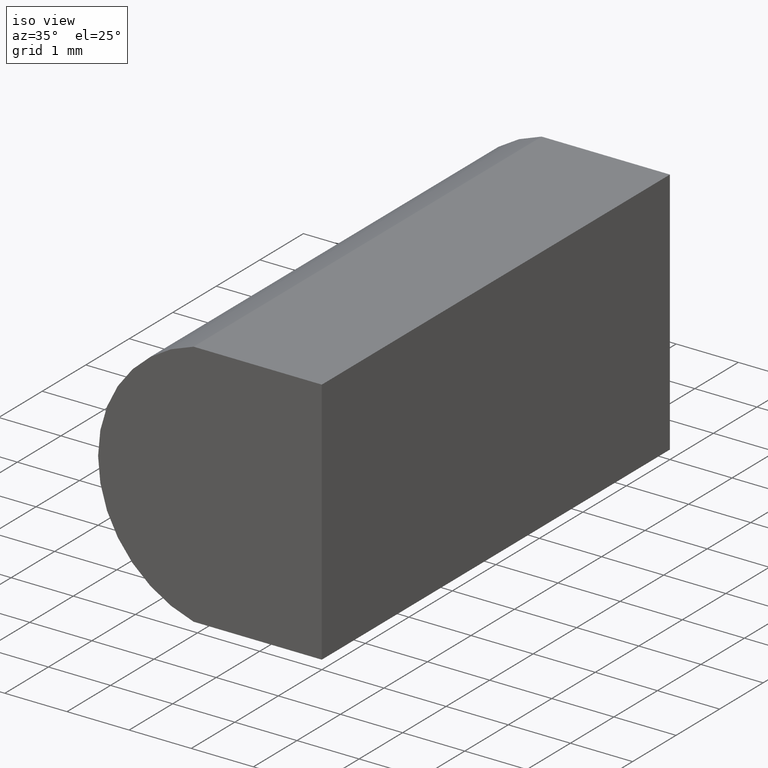
[diagram: clean part render]
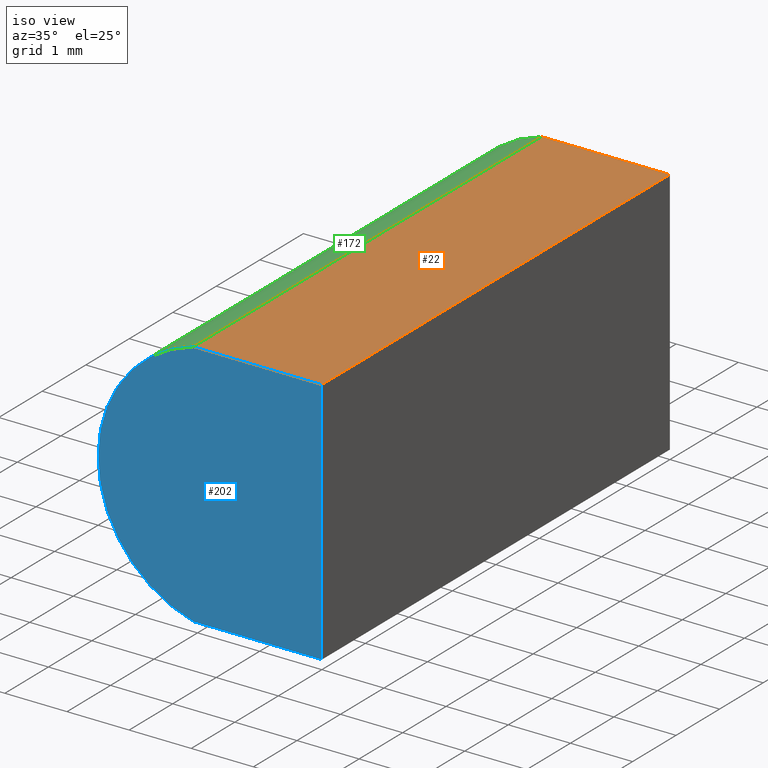
[diagram: same view with three faces highlighted in distinct colors, each labeled with its STEP entity id]
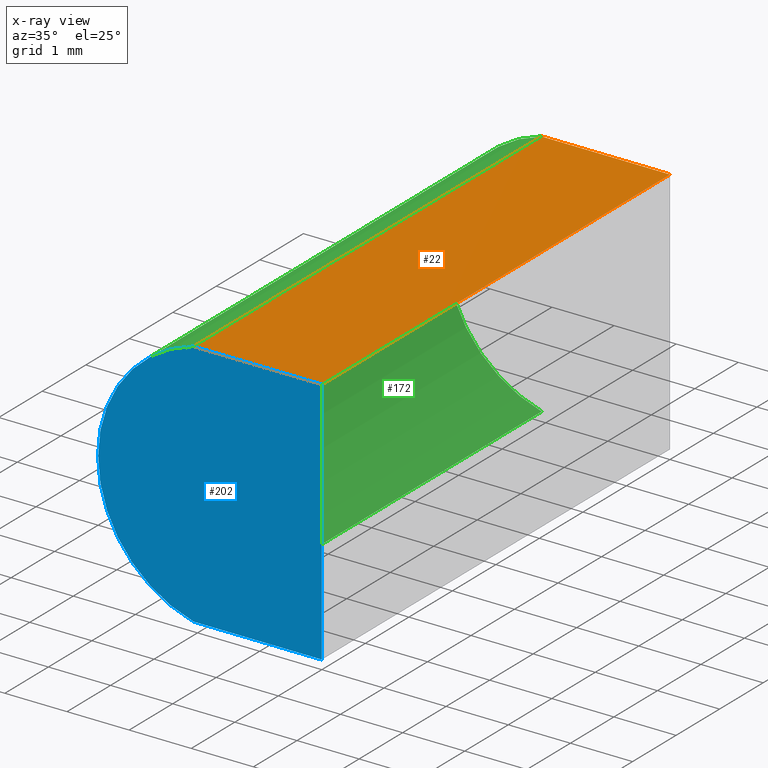
[diagram: x-ray of the same camera — body ghosted, the three highlighted faces saturated]
A machine part, iso view with three faces highlighted in distinct colors.
The next image is the same camera in x-ray (body ghosted, the three faces saturated) — at least one of them is partly hidden behind the body in this view.
Their STEP definitions:

[orange] entity #22 — the highlighted planar face has unit normal (0, 0, -1).
#3 = LINE ( 'NONE', #31, #200 ) ;
#4 = CARTESIAN_POINT ( 'NONE',  ( -2.063760245803299300, 8.000000000000000000, 4.000000000000000000 ) ) ;
#5 = EDGE_CURVE ( 'NONE', #27, #176, #193, .T. ) ;
#9 = VECTOR ( 'NONE', #148, 1000.000000000000000 ) ;
#13 = DIRECTION ( 'NONE',  ( 1.000000000000000000, -0.0000000000000000000, -0.0000000000000000000 ) ) ;
#16 = CARTESIAN_POINT ( 'NONE',  ( 0.0000000000000000000, 8.000000000000000000, 4.000000000000000000 ) ) ;
#18 = AXIS2_PLACEMENT_3D ( 'NONE', #16, #147, #51 ) ;
#22 = ADVANCED_FACE ( 'NONE', ( #118 ), #114, .F. ) ;
#27 = VERTEX_POINT ( 'NONE', #157 ) ;
#30 = LINE ( 'NONE', #169, #62 ) ;
#31 = CARTESIAN_POINT ( 'NONE',  ( -2.063760245803299300, 8.000000000000000000, 4.000000000000000000 ) ) ;
#51 = DIRECTION ( 'NONE',  ( -1.000000000000000000, 0.0000000000000000000, -0.0000000000000000000 ) ) ;
#62 = VECTOR ( 'NONE', #13, 1000.000000000000000 ) ;
#71 = VERTEX_POINT ( 'NONE', #4 ) ;
#87 = VECTOR ( 'NONE', #96, 1000.000000000000000 ) ;
#91 = ORIENTED_EDGE ( 'NONE', *, *, #184, .T. ) ;
#96 = DIRECTION ( 'NONE',  ( 1.000000000000000000, -0.0000000000000000000, -0.0000000000000000000 ) ) ;
#97 = ORIENTED_EDGE ( 'NONE', *, *, #5, .F. ) ;
#114 = PLANE ( 'NONE',  #18 ) ;
#118 = FACE_OUTER_BOUND ( 'NONE', #140, .T. ) ;
#121 = ORIENTED_EDGE ( 'NONE', *, *, #174, .T. ) ;
#125 = CARTESIAN_POINT ( 'NONE',  ( 0.0000000000000000000, 8.000000000000000000, 4.000000000000000000 ) ) ;
#130 = CARTESIAN_POINT ( 'NONE',  ( 0.0000000000000000000, 8.000000000000000000, 4.000000000000000000 ) ) ;
#134 = CARTESIAN_POINT ( 'NONE',  ( 0.0000000000000000000, 0.0000000000000000000, 4.000000000000000000 ) ) ;
#140 = EDGE_LOOP ( 'NONE', ( #121, #97, #190, #91 ) ) ;
#147 = DIRECTION ( 'NONE',  ( 0.0000000000000000000, 0.0000000000000000000, -1.000000000000000000 ) ) ;
#148 = DIRECTION ( 'NONE',  ( -0.0000000000000000000, -1.000000000000000000, -0.0000000000000000000 ) ) ;
#150 = EDGE_CURVE ( 'NONE', #71, #27, #195, .T. ) ;
#157 = CARTESIAN_POINT ( 'NONE',  ( 0.0000000000000000000, 8.000000000000000000, 4.000000000000000000 ) ) ;
#169 = CARTESIAN_POINT ( 'NONE',  ( 0.0000000000000000000, 0.0000000000000000000, 4.000000000000000000 ) ) ;
#174 = EDGE_CURVE ( 'NONE', #179, #176, #30, .T. ) ;
#176 = VERTEX_POINT ( 'NONE', #134 ) ;
#179 = VERTEX_POINT ( 'NONE', #183 ) ;
#183 = CARTESIAN_POINT ( 'NONE',  ( -2.063760245803299300, 0.0000000000000000000, 4.000000000000000000 ) ) ;
#184 = EDGE_CURVE ( 'NONE', #71, #179, #3, .T. ) ;
#190 = ORIENTED_EDGE ( 'NONE', *, *, #150, .F. ) ;
#193 = LINE ( 'NONE', #130, #9 ) ;
#195 = LINE ( 'NONE', #125, #87 ) ;
#200 = VECTOR ( 'NONE', #201, 1000.000000000000000 ) ;
#201 = DIRECTION ( 'NONE',  ( -0.0000000000000000000, -1.000000000000000000, -0.0000000000000000000 ) ) ;

[blue] entity #202 — the highlighted planar face has unit normal (0, 1, 0).
#1 = CARTESIAN_POINT ( 'NONE',  ( 0.0000000000000000000, 0.0000000000000000000, 0.0000000000000000000 ) ) ;
#11 = CARTESIAN_POINT ( 'NONE',  ( -1.529999999999999600, 0.0000000000000000000, 2.000000000000000000 ) ) ;
#13 = DIRECTION ( 'NONE',  ( 1.000000000000000000, -0.0000000000000000000, -0.0000000000000000000 ) ) ;
#23 = VERTEX_POINT ( 'NONE', #136 ) ;
#25 = ORIENTED_EDGE ( 'NONE', *, *, #115, .F. ) ;
#30 = LINE ( 'NONE', #169, #62 ) ;
#45 = LINE ( 'NONE', #154, #64 ) ;
#46 = AXIS2_PLACEMENT_3D ( 'NONE', #11, #120, #159 ) ;
#48 = DIRECTION ( 'NONE',  ( 0.0000000000000000000, 1.000000000000000000, 0.0000000000000000000 ) ) ;
#53 = LINE ( 'NONE', #1, #59 ) ;
#59 = VECTOR ( 'NONE', #168, 1000.000000000000000 ) ;
#62 = VECTOR ( 'NONE', #13, 1000.000000000000000 ) ;
#64 = VECTOR ( 'NONE', #188, 1000.000000000000000 ) ;
#66 = CARTESIAN_POINT ( 'NONE',  ( -2.063760245803298400, 0.0000000000000000000, -4.336808689942017700E-016 ) ) ;
#72 = EDGE_LOOP ( 'NONE', ( #146, #93, #203, #25 ) ) ;
#80 = FACE_OUTER_BOUND ( 'NONE', #72, .T. ) ;
#93 = ORIENTED_EDGE ( 'NONE', *, *, #180, .F. ) ;
#102 = CARTESIAN_POINT ( 'NONE',  ( -1.529999999999999600, 0.0000000000000000000, 2.000000000000000000 ) ) ;
#113 = VERTEX_POINT ( 'NONE', #66 ) ;
#115 = EDGE_CURVE ( 'NONE', #113, #179, #170, .T. ) ;
#120 = DIRECTION ( 'NONE',  ( 0.0000000000000000000, 1.000000000000000000, 0.0000000000000000000 ) ) ;
#129 = AXIS2_PLACEMENT_3D ( 'NONE', #102, #48, #194 ) ;
#134 = CARTESIAN_POINT ( 'NONE',  ( 0.0000000000000000000, 0.0000000000000000000, 4.000000000000000000 ) ) ;
#135 = PLANE ( 'NONE',  #129 ) ;
#136 = CARTESIAN_POINT ( 'NONE',  ( 0.0000000000000000000, 0.0000000000000000000, 0.0000000000000000000 ) ) ;
#146 = ORIENTED_EDGE ( 'NONE', *, *, #191, .F. ) ;
#154 = CARTESIAN_POINT ( 'NONE',  ( 0.0000000000000000000, 0.0000000000000000000, 0.0000000000000000000 ) ) ;
#159 = DIRECTION ( 'NONE',  ( 0.0000000000000000000, 0.0000000000000000000, 1.000000000000000000 ) ) ;
#168 = DIRECTION ( 'NONE',  ( -0.0000000000000000000, -0.0000000000000000000, -1.000000000000000000 ) ) ;
#169 = CARTESIAN_POINT ( 'NONE',  ( 0.0000000000000000000, 0.0000000000000000000, 4.000000000000000000 ) ) ;
#170 = CIRCLE ( 'NONE', #46, 2.069999999999999800 ) ;
#174 = EDGE_CURVE ( 'NONE', #179, #176, #30, .T. ) ;
#176 = VERTEX_POINT ( 'NONE', #134 ) ;
#179 = VERTEX_POINT ( 'NONE', #183 ) ;
#180 = EDGE_CURVE ( 'NONE', #176, #23, #53, .T. ) ;
#183 = CARTESIAN_POINT ( 'NONE',  ( -2.063760245803299300, 0.0000000000000000000, 4.000000000000000000 ) ) ;
#188 = DIRECTION ( 'NONE',  ( -1.000000000000000000, 0.0000000000000000000, 0.0000000000000000000 ) ) ;
#191 = EDGE_CURVE ( 'NONE', #23, #113, #45, .T. ) ;
#194 = DIRECTION ( 'NONE',  ( 0.0000000000000000000, -0.0000000000000000000, 1.000000000000000000 ) ) ;
#202 = ADVANCED_FACE ( 'NONE', ( #80 ), #135, .F. ) ;
#203 = ORIENTED_EDGE ( 'NONE', *, *, #174, .F. ) ;

[green] entity #172 — the highlighted cylindrical surface (partial cylindrical patch) has radius 2.07 mm, axis along (-0, -1, -0).
#3 = LINE ( 'NONE', #31, #200 ) ;
#4 = CARTESIAN_POINT ( 'NONE',  ( -2.063760245803299300, 8.000000000000000000, 4.000000000000000000 ) ) ;
#11 = CARTESIAN_POINT ( 'NONE',  ( -1.529999999999999600, 0.0000000000000000000, 2.000000000000000000 ) ) ;
#14 = ORIENTED_EDGE ( 'NONE', *, *, #52, .T. ) ;
#17 = DIRECTION ( 'NONE',  ( -0.0000000000000000000, -1.000000000000000000, -0.0000000000000000000 ) ) ;
#31 = CARTESIAN_POINT ( 'NONE',  ( -2.063760245803299300, 8.000000000000000000, 4.000000000000000000 ) ) ;
#32 = EDGE_LOOP ( 'NONE', ( #50, #204, #160, #14 ) ) ;
#37 = CARTESIAN_POINT ( 'NONE',  ( -2.063760245803298400, 8.000000000000000000, -4.336808689942017700E-016 ) ) ;
#38 = EDGE_CURVE ( 'NONE', #76, #71, #41, .T. ) ;
#41 = CIRCLE ( 'NONE', #186, 2.069999999999999800 ) ;
#43 = VECTOR ( 'NONE', #17, 1000.000000000000000 ) ;
#46 = AXIS2_PLACEMENT_3D ( 'NONE', #11, #120, #159 ) ;
#49 = DIRECTION ( 'NONE',  ( 0.0000000000000000000, 0.0000000000000000000, 1.000000000000000000 ) ) ;
#50 = ORIENTED_EDGE ( 'NONE', *, *, #115, .T. ) ;
#52 = EDGE_CURVE ( 'NONE', #76, #113, #112, .T. ) ;
#56 = DIRECTION ( 'NONE',  ( 0.0000000000000000000, 1.000000000000000000, 0.0000000000000000000 ) ) ;
#66 = CARTESIAN_POINT ( 'NONE',  ( -2.063760245803298400, 0.0000000000000000000, -4.336808689942017700E-016 ) ) ;
#71 = VERTEX_POINT ( 'NONE', #4 ) ;
#76 = VERTEX_POINT ( 'NONE', #37 ) ;
#84 = AXIS2_PLACEMENT_3D ( 'NONE', #199, #198, #133 ) ;
#112 = LINE ( 'NONE', #132, #43 ) ;
#113 = VERTEX_POINT ( 'NONE', #66 ) ;
#115 = EDGE_CURVE ( 'NONE', #113, #179, #170, .T. ) ;
#120 = DIRECTION ( 'NONE',  ( 0.0000000000000000000, 1.000000000000000000, 0.0000000000000000000 ) ) ;
#128 = CARTESIAN_POINT ( 'NONE',  ( -1.529999999999999600, 8.000000000000000000, 2.000000000000000000 ) ) ;
#132 = CARTESIAN_POINT ( 'NONE',  ( -2.063760245803298400, 8.000000000000000000, -4.336808689942017700E-016 ) ) ;
#133 = DIRECTION ( 'NONE',  ( 0.0000000000000000000, 0.0000000000000000000, -1.000000000000000000 ) ) ;
#141 = FACE_OUTER_BOUND ( 'NONE', #32, .T. ) ;
#149 = CYLINDRICAL_SURFACE ( 'NONE', #84, 2.069999999999999800 ) ;
#159 = DIRECTION ( 'NONE',  ( 0.0000000000000000000, 0.0000000000000000000, 1.000000000000000000 ) ) ;
#160 = ORIENTED_EDGE ( 'NONE', *, *, #38, .F. ) ;
#170 = CIRCLE ( 'NONE', #46, 2.069999999999999800 ) ;
#172 = ADVANCED_FACE ( 'NONE', ( #141 ), #149, .T. ) ;
#179 = VERTEX_POINT ( 'NONE', #183 ) ;
#183 = CARTESIAN_POINT ( 'NONE',  ( -2.063760245803299300, 0.0000000000000000000, 4.000000000000000000 ) ) ;
#184 = EDGE_CURVE ( 'NONE', #71, #179, #3, .T. ) ;
#186 = AXIS2_PLACEMENT_3D ( 'NONE', #128, #56, #49 ) ;
#198 = DIRECTION ( 'NONE',  ( -0.0000000000000000000, -1.000000000000000000, -0.0000000000000000000 ) ) ;
#199 = CARTESIAN_POINT ( 'NONE',  ( -1.529999999999999600, 8.000000000000000000, 2.000000000000000000 ) ) ;
#200 = VECTOR ( 'NONE', #201, 1000.000000000000000 ) ;
#201 = DIRECTION ( 'NONE',  ( -0.0000000000000000000, -1.000000000000000000, -0.0000000000000000000 ) ) ;
#204 = ORIENTED_EDGE ( 'NONE', *, *, #184, .F. ) ;